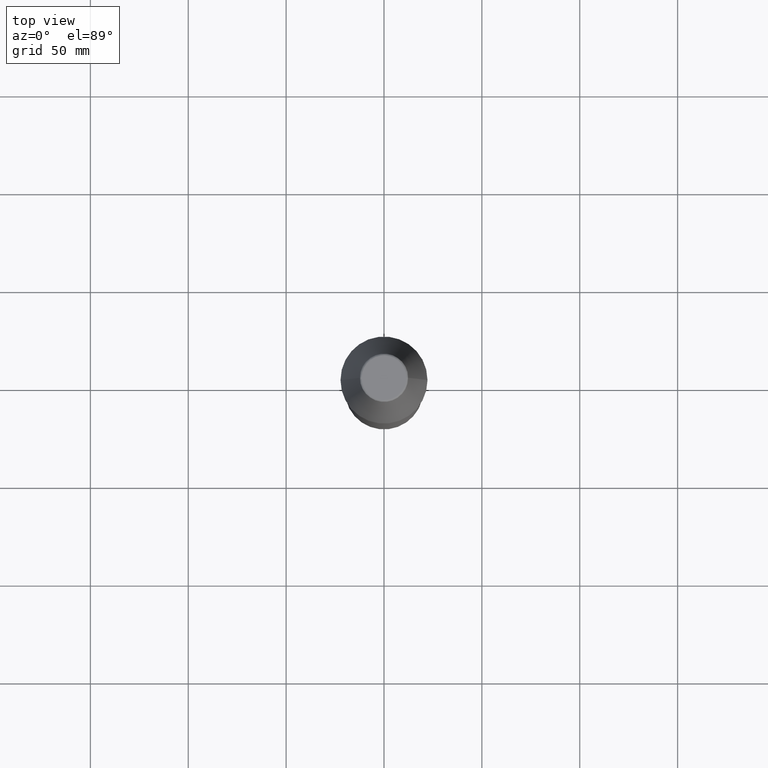
[diagram: clean part render]
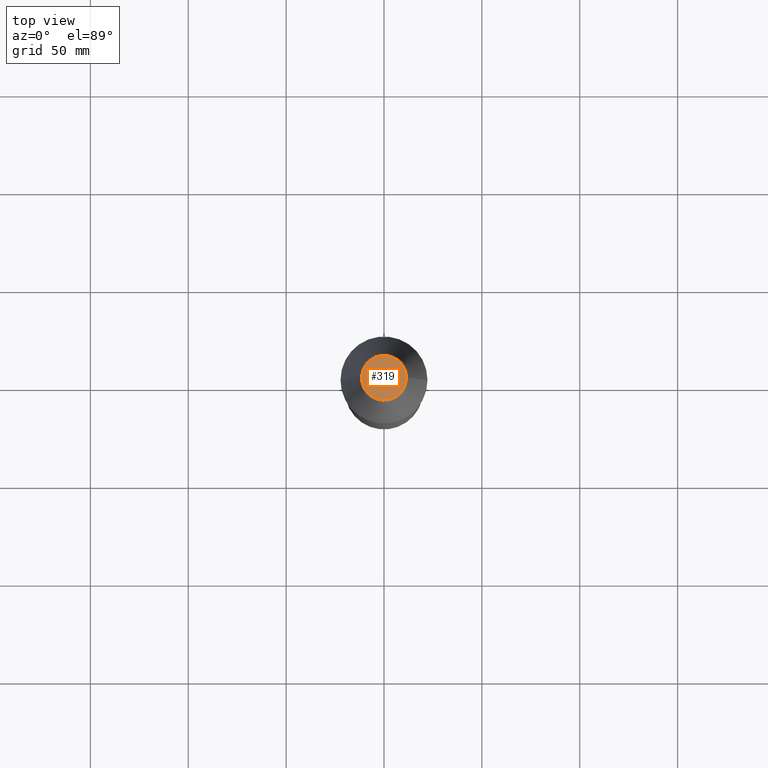
[diagram: same view with one face highlighted and labeled with its STEP entity id]
A machine part, top view. The second image highlights one B-rep face of the part: STEP entity #319.
In plain terms, the highlighted planar face has unit normal (0, 0, 1).
Its self-contained STEP definition (entity closure, byte-faithful):
#37 = CARTESIAN_POINT ( 'NONE',  ( -11.38516258961892900, 1.530457565779663400E-015, 68.40000000000000600 ) ) ;
#41 = CARTESIAN_POINT ( 'NONE',  ( 11.38516258961892900, 0.0000000000000000000, 68.40000000000000600 ) ) ;
#46 = FACE_OUTER_BOUND ( 'NONE', #424, .T. ) ;
#54 = CARTESIAN_POINT ( 'NONE',  ( -11.38516258961892900, 1.530457565779663400E-015, 68.40000000000000600 ) ) ;
#79 = CARTESIAN_POINT ( 'NONE',  ( 0.0000000000000000000, 9.500000000000000000, 68.40000000000000600 ) ) ;
#81 = CARTESIAN_POINT ( 'NONE',  ( 11.38516258961892900, 0.0000000000000000000, 68.40000000000000600 ) ) ;
#82 = CARTESIAN_POINT ( 'NONE',  ( 11.38516258961892900, -22.77032517923785400, 68.40000000000000600 ) ) ;
#91 = DIRECTION ( 'NONE',  ( 1.000000000000000000, 0.0000000000000000000, -0.0000000000000000000 ) ) ;
#94 = DIRECTION ( 'NONE',  ( 0.0000000000000000000, 0.0000000000000000000, 1.000000000000000000 ) ) ;
#95 = PLANE ( 'NONE',  #420 ) ;
#98 = CARTESIAN_POINT ( 'NONE',  ( -11.38516258961892900, 1.530457565779663400E-015, 68.40000000000000600 ) ) ;
#103 = CARTESIAN_POINT ( 'NONE',  ( -11.38516258961892500, 22.77032517923785400, 68.40000000000000600 ) ) ;
#113 = CARTESIAN_POINT ( 'NONE',  ( 11.38516258961892900, 22.77032517923785400, 68.40000000000000600 ) ) ;
#194 = CARTESIAN_POINT ( 'NONE',  ( 11.38516258961892900, 0.0000000000000000000, 68.40000000000000600 ) ) ;
#227 = EDGE_CURVE ( 'NONE', #409, #280, #246, .T. ) ;
#246 =( BOUNDED_CURVE ( )  B_SPLINE_CURVE ( 3, ( #98, #103, #113, #81 ),
 .UNSPECIFIED., .F., .F. ) 
 B_SPLINE_CURVE_WITH_KNOTS ( ( 4, 4 ),
 ( 0.0000000000000000000, 1.000000000000000000 ),
 .UNSPECIFIED. ) 
 CURVE ( )  GEOMETRIC_REPRESENTATION_ITEM ( )  RATIONAL_B_SPLINE_CURVE ( ( 1.000000000000000000, 0.3333333333333333700, 0.3333333333333333700, 1.000000000000000000 ) ) 
 REPRESENTATION_ITEM ( '' )  );
#250 = ORIENTED_EDGE ( 'NONE', *, *, #307, .F. ) ;
#280 = VERTEX_POINT ( 'NONE', #41 ) ;
#307 = EDGE_CURVE ( 'NONE', #280, #409, #388, .T. ) ;
#319 = ADVANCED_FACE ( 'NONE', ( #46 ), #95, .T. ) ;
#386 = CARTESIAN_POINT ( 'NONE',  ( -11.38516258961893300, -22.77032517923785400, 68.40000000000000600 ) ) ;
#388 =( BOUNDED_CURVE ( )  B_SPLINE_CURVE ( 3, ( #194, #82, #386, #37 ),
 .UNSPECIFIED., .F., .T. ) 
 B_SPLINE_CURVE_WITH_KNOTS ( ( 4, 4 ),
 ( 0.0000000000000000000, 1.000000000000000000 ),
 .UNSPECIFIED. ) 
 CURVE ( )  GEOMETRIC_REPRESENTATION_ITEM ( )  RATIONAL_B_SPLINE_CURVE ( ( 1.000000000000000000, 0.3333333333333333700, 0.3333333333333333700, 1.000000000000000000 ) ) 
 REPRESENTATION_ITEM ( '' )  );
#404 = ORIENTED_EDGE ( 'NONE', *, *, #227, .F. ) ;
#409 = VERTEX_POINT ( 'NONE', #54 ) ;
#420 = AXIS2_PLACEMENT_3D ( 'NONE', #79, #94, #91 ) ;
#424 = EDGE_LOOP ( 'NONE', ( #250, #404 ) ) ;